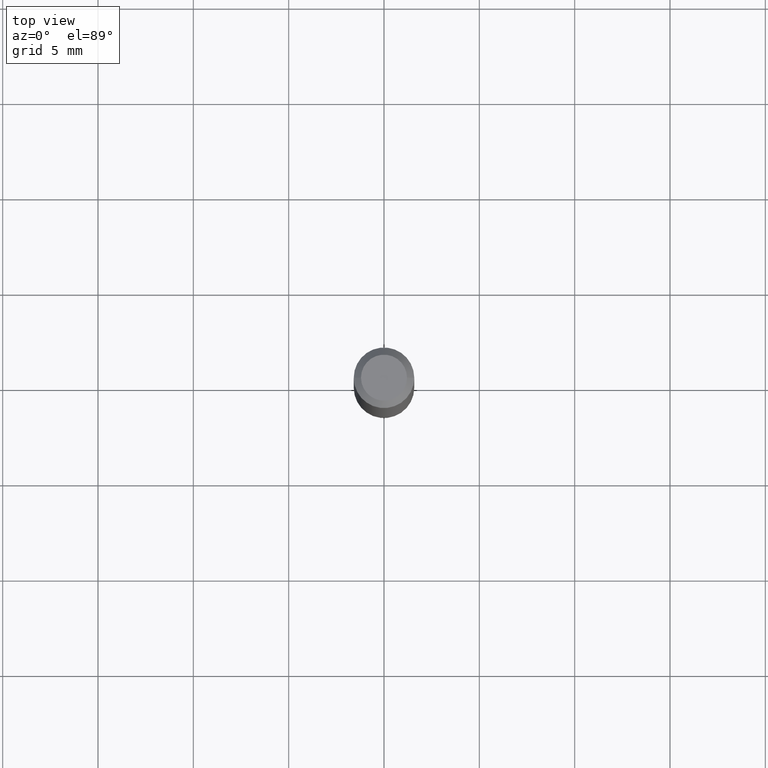
[diagram: clean part render]
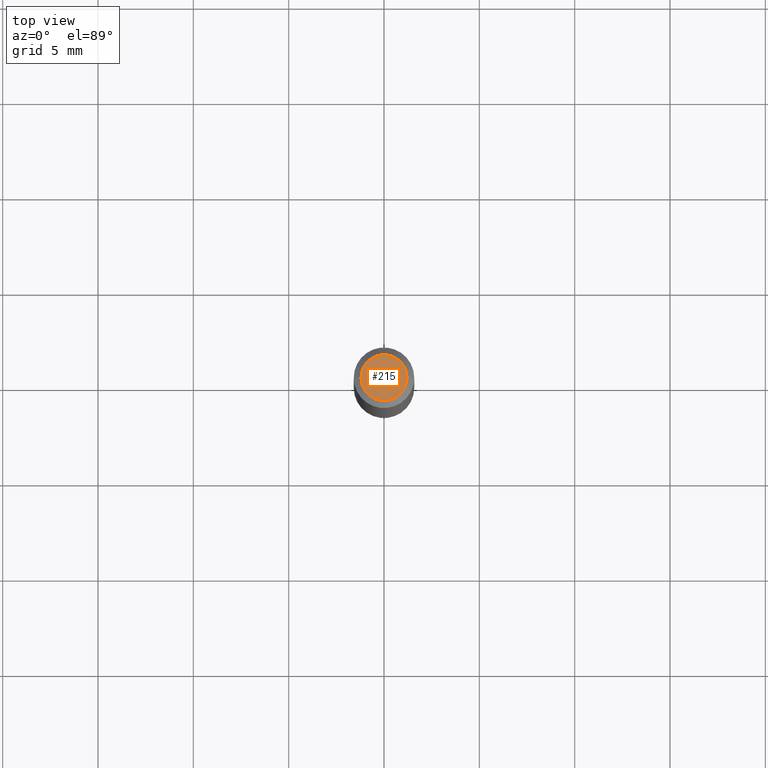
[diagram: same view with one face highlighted and labeled with its STEP entity id]
A machine part, top view. The second image highlights one B-rep face of the part: STEP entity #215.
In plain terms, the highlighted planar face has unit normal (0, -0, -1).
Its self-contained STEP definition (entity closure, byte-faithful):
#41 = DIRECTION ( 'NONE',  ( -2.445468806185136597E-29, 3.491481338843145583E-15, 1.000000000000000000 ) ) ;
#50 = AXIS2_PLACEMENT_3D ( 'NONE', #400, #41, #135 ) ;
#84 = DIRECTION ( 'NONE',  ( 2.438088387897960049E-29, -3.491481338843145188E-15, -1.000000000000000000 ) ) ;
#100 = VERTEX_POINT ( 'NONE', #245 ) ;
#103 = AXIS2_PLACEMENT_3D ( 'NONE', #120, #362, #449 ) ;
#120 = CARTESIAN_POINT ( 'NONE',  ( -3.350520365439544480E-45, 4.783655101941405986E-31, 1.370093274943982539E-16 ) ) ;
#135 = DIRECTION ( 'NONE',  ( 1.000000000000000000, -6.982962677686267499E-15, 4.852736867747366768E-29 ) ) ;
#156 = AXIS2_PLACEMENT_3D ( 'NONE', #219, #84, #432 ) ;
#188 = FACE_OUTER_BOUND ( 'NONE', #460, .T. ) ;
#209 = ORIENTED_EDGE ( 'NONE', *, *, #285, .T. ) ;
#215 = ADVANCED_FACE ( 'NONE', ( #188 ), #288, .F. ) ;
#219 = CARTESIAN_POINT ( 'NONE',  ( 3.316907271900976096E-16, 0.04749999999999999362, -9.734069984785028182E-17 ) ) ;
#245 = CARTESIAN_POINT ( 'NONE',  ( -0.04749999999999999362, 3.578768372314212971E-16, 1.370093274943958627E-16 ) ) ;
#251 = EDGE_CURVE ( 'NONE', #100, #373, #452, .T. ) ;
#259 = CIRCLE ( 'NONE', #50, 0.04749999999999999362 ) ;
#264 = CARTESIAN_POINT ( 'NONE',  ( 0.04749999999999999362, -4.035134999187576158E-16, 1.370093274944008177E-16 ) ) ;
#285 = EDGE_CURVE ( 'NONE', #373, #100, #259, .T. ) ;
#288 = PLANE ( 'NONE',  #156 ) ;
#362 = DIRECTION ( 'NONE',  ( -2.445468806185136597E-29, 3.491481338843145583E-15, 1.000000000000000000 ) ) ;
#373 = VERTEX_POINT ( 'NONE', #264 ) ;
#400 = CARTESIAN_POINT ( 'NONE',  ( -3.350520365439544480E-45, 4.783655101941405986E-31, 1.370093274943982539E-16 ) ) ;
#425 = ORIENTED_EDGE ( 'NONE', *, *, #251, .T. ) ;
#432 = DIRECTION ( 'NONE',  ( -1.000000000000000000, 6.982962677686265922E-15, -4.876176775795935793E-29 ) ) ;
#449 = DIRECTION ( 'NONE',  ( 1.000000000000000000, -6.982962677686267499E-15, 4.852736867747366768E-29 ) ) ;
#452 = CIRCLE ( 'NONE', #103, 0.04749999999999999362 ) ;
#460 = EDGE_LOOP ( 'NONE', ( #425, #209 ) ) ;